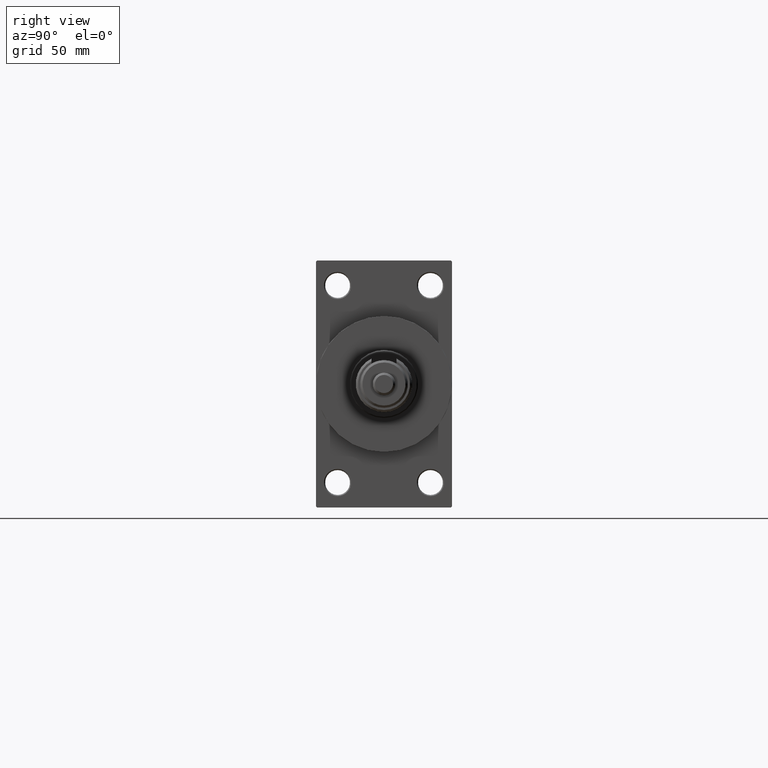
[diagram: clean part render]
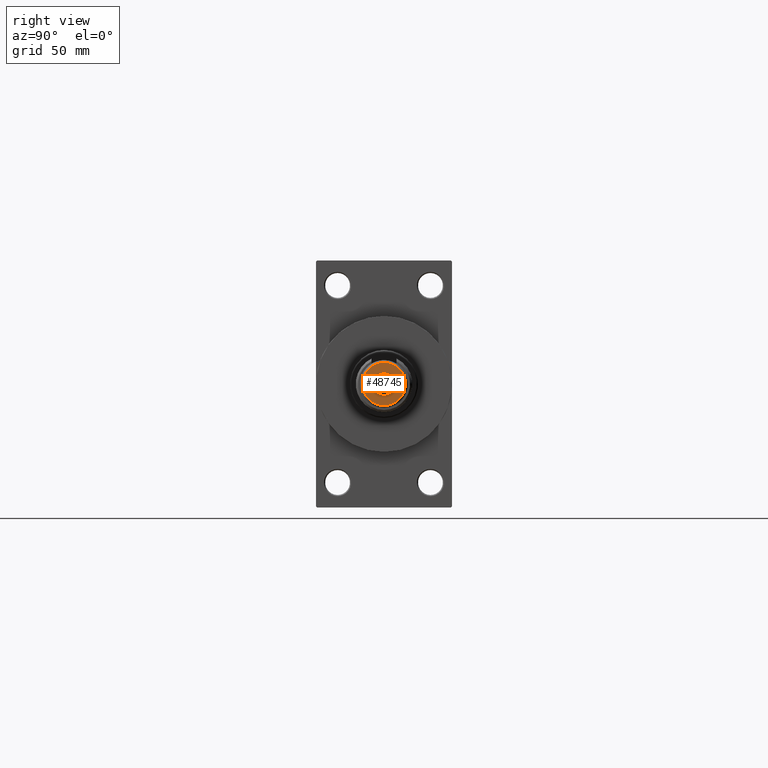
[diagram: same view with one face highlighted and labeled with its STEP entity id]
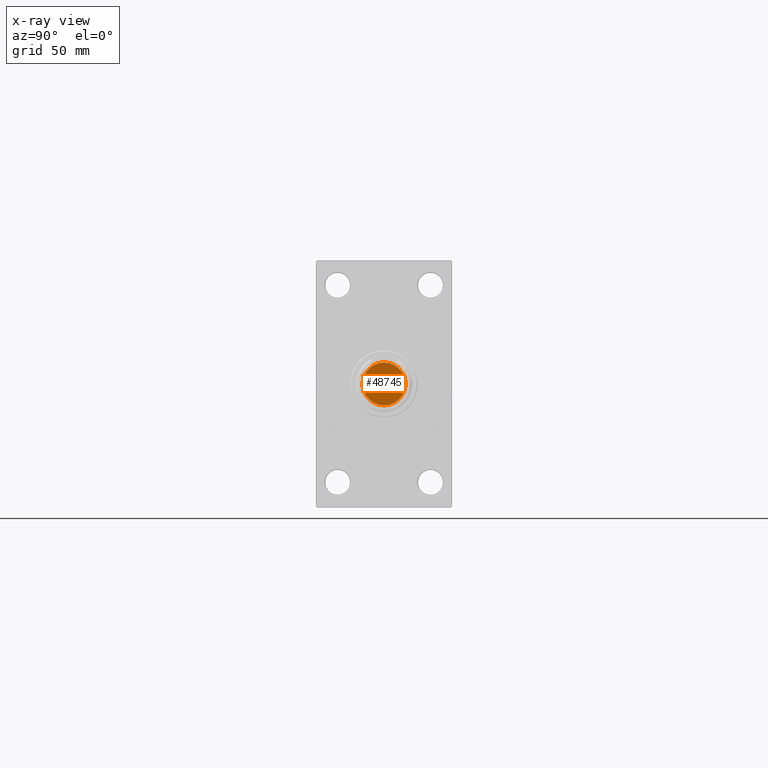
[diagram: x-ray of the same camera — body ghosted, the highlighted face saturated]
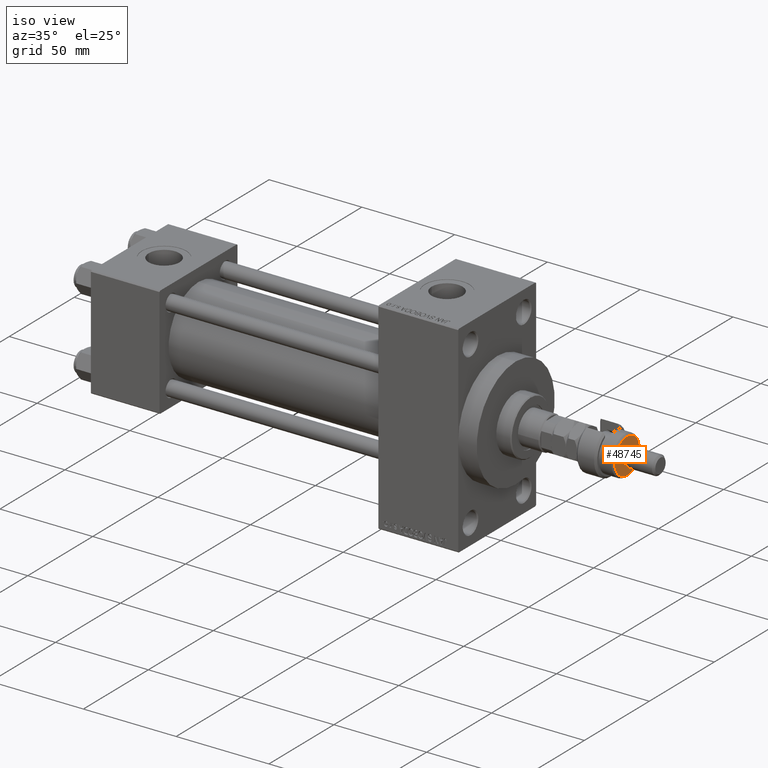
[diagram: same view with one face highlighted and labeled with its STEP entity id]
A machine part, right view. The second image highlights one B-rep face of the part: STEP entity #48745.
The next image is the same camera in x-ray: the body ghosted, the highlighted face saturated — about 0% of this face is hidden behind the body in this view.
A second angle (iso view) of the same face is appended — the face is thin or edge-on in the first view.
In plain terms, the highlighted planar face has unit normal (1, 0, 0).
Its self-contained STEP definition (entity closure, byte-faithful):
#187 = EDGE_CURVE ( 'NONE', #2590, #9829, #224, .T. ) ;
#224 = CIRCLE ( 'NONE', #13171, 4.000000000000000000 ) ;
#1095 = CIRCLE ( 'NONE', #39907, 4.000000000000000000 ) ;
#1528 = DIRECTION ( 'NONE',  ( 1.000000000000000000, 0.000000000000000000, 0.000000000000000000 ) ) ;
#1890 = CARTESIAN_POINT ( 'NONE',  ( 9.500000000000001776, 1.224646799147353256E-15, 19.00000000000000000 ) ) ;
#2343 = EDGE_CURVE ( 'NONE', #9829, #2590, #1095, .T. ) ;
#2590 = VERTEX_POINT ( 'NONE', #19775 ) ;
#4638 = DIRECTION ( 'NONE',  ( 1.000000000000000000, 0.000000000000000000, 0.000000000000000000 ) ) ;
#8522 = EDGE_LOOP ( 'NONE', ( #20544, #47271 ) ) ;
#9829 = VERTEX_POINT ( 'NONE', #37067 ) ;
#10463 = FACE_OUTER_BOUND ( 'NONE', #8522, .T. ) ;
#12691 = DIRECTION ( 'NONE',  ( 0.000000000000000000, 0.000000000000000000, 1.000000000000000000 ) ) ;
#13171 = AXIS2_PLACEMENT_3D ( 'NONE', #48975, #18120, #14330 ) ;
#13788 = VERTEX_POINT ( 'NONE', #32849 ) ;
#14330 = DIRECTION ( 'NONE',  ( 1.000000000000000000, 0.000000000000000000, 0.000000000000000000 ) ) ;
#15979 = EDGE_CURVE ( 'NONE', #18842, #13788, #20069, .T. ) ;
#16479 = CARTESIAN_POINT ( 'NONE',  ( 0.000000000000000000, 0.000000000000000000, 19.00000000000000000 ) ) ;
#18120 = DIRECTION ( 'NONE',  ( 0.000000000000000000, 0.000000000000000000, 1.000000000000000000 ) ) ;
#18842 = VERTEX_POINT ( 'NONE', #1890 ) ;
#18960 = CIRCLE ( 'NONE', #39137, 9.500000000000001776 ) ;
#19775 = CARTESIAN_POINT ( 'NONE',  ( 4.000000000000000000, 4.898587196589412829E-16, 19.00000000000000000 ) ) ;
#19803 = DIRECTION ( 'NONE',  ( 1.000000000000000000, 0.000000000000000000, -0.000000000000000000 ) ) ;
#20069 = CIRCLE ( 'NONE', #32999, 9.500000000000001776 ) ;
#20544 = ORIENTED_EDGE ( 'NONE', *, *, #26169, .T. ) ;
#20570 = CARTESIAN_POINT ( 'NONE',  ( 0.000000000000000000, 0.000000000000000000, 19.00000000000000000 ) ) ;
#20923 = CARTESIAN_POINT ( 'NONE',  ( 0.000000000000000000, 0.000000000000000000, 19.00000000000000000 ) ) ;
#22841 = DIRECTION ( 'NONE',  ( 0.000000000000000000, 0.000000000000000000, 1.000000000000000000 ) ) ;
#24230 = DIRECTION ( 'NONE',  ( 1.000000000000000000, 0.000000000000000000, 0.000000000000000000 ) ) ;
#24832 = ORIENTED_EDGE ( 'NONE', *, *, #2343, .F. ) ;
#26169 = EDGE_CURVE ( 'NONE', #13788, #18842, #18960, .T. ) ;
#26649 = CARTESIAN_POINT ( 'NONE',  ( 0.000000000000000000, 0.000000000000000000, 19.00000000000000000 ) ) ;
#27888 = ORIENTED_EDGE ( 'NONE', *, *, #187, .F. ) ;
#32849 = CARTESIAN_POINT ( 'NONE',  ( -9.500000000000001776, 0.000000000000000000, 19.00000000000000000 ) ) ;
#32999 = AXIS2_PLACEMENT_3D ( 'NONE', #16479, #12691, #1528 ) ;
#34488 = PLANE ( 'NONE',  #40411 ) ;
#36011 = DIRECTION ( 'NONE',  ( 0.000000000000000000, 0.000000000000000000, 1.000000000000000000 ) ) ;
#37067 = CARTESIAN_POINT ( 'NONE',  ( -4.000000000000000000, 0.000000000000000000, 19.00000000000000000 ) ) ;
#39137 = AXIS2_PLACEMENT_3D ( 'NONE', #20923, #43464, #24230 ) ;
#39907 = AXIS2_PLACEMENT_3D ( 'NONE', #20570, #36011, #4638 ) ;
#40411 = AXIS2_PLACEMENT_3D ( 'NONE', #26649, #22841, #19803 ) ;
#43464 = DIRECTION ( 'NONE',  ( 0.000000000000000000, 0.000000000000000000, 1.000000000000000000 ) ) ;
#45388 = EDGE_LOOP ( 'NONE', ( #24832, #27888 ) ) ;
#45866 = FACE_BOUND ( 'NONE', #45388, .T. ) ;
#47271 = ORIENTED_EDGE ( 'NONE', *, *, #15979, .T. ) ;
#48745 = ADVANCED_FACE ( 'NONE', ( #10463, #45866 ), #34488, .T. ) ;
#48975 = CARTESIAN_POINT ( 'NONE',  ( 0.000000000000000000, 0.000000000000000000, 19.00000000000000000 ) ) ;